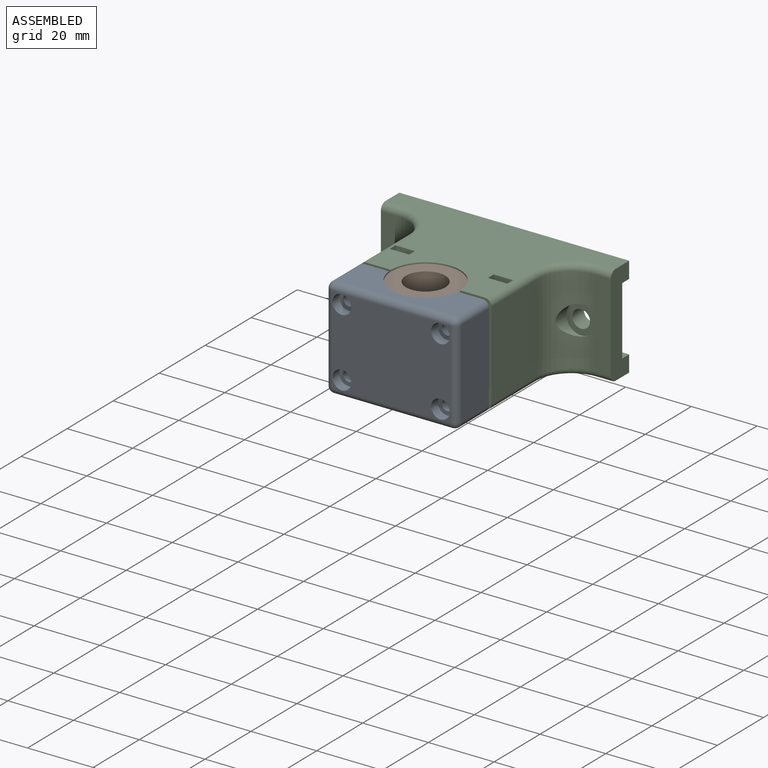
[diagram: assembled view]
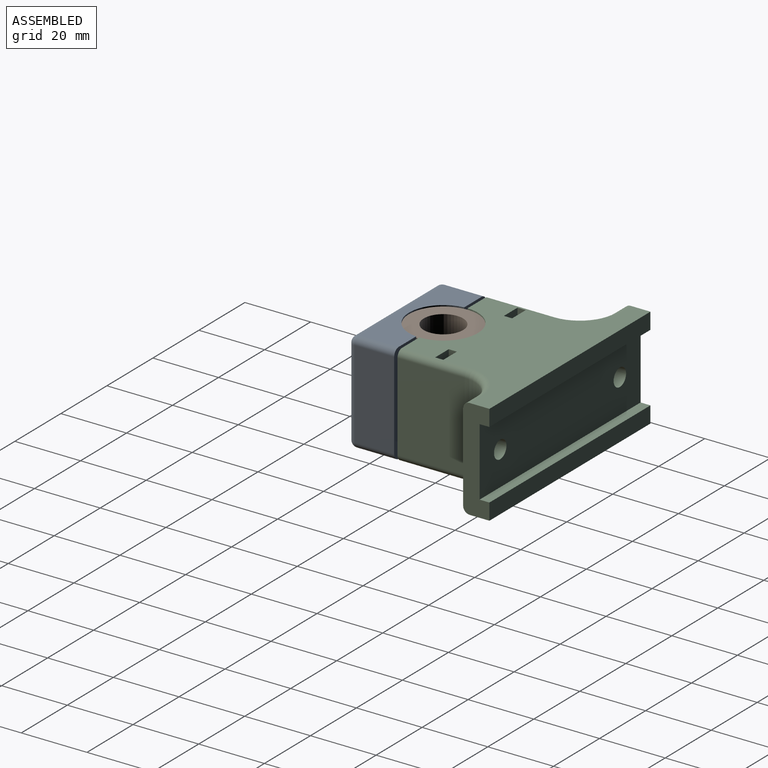
[diagram: assembled view, second angle]
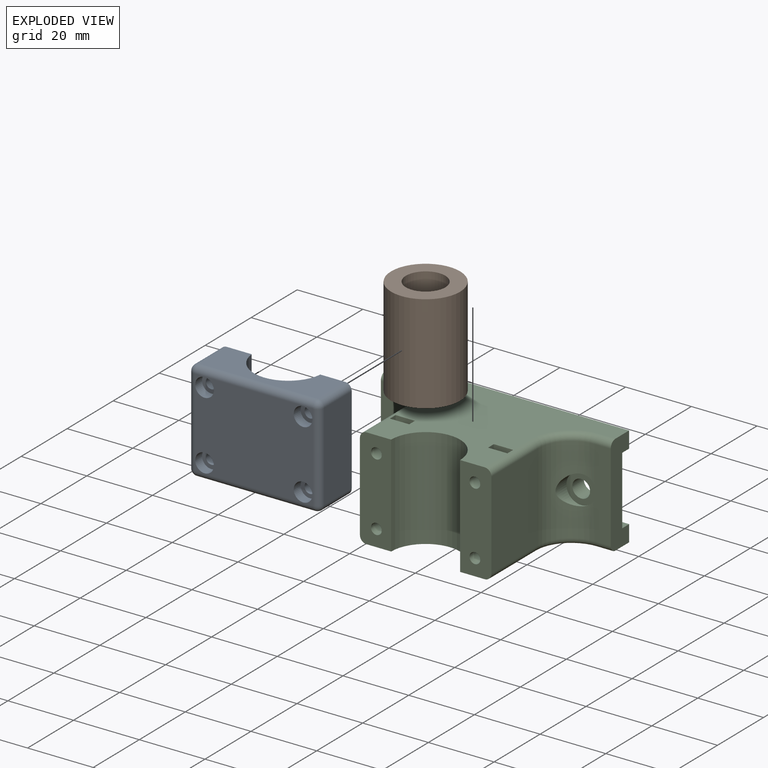
[diagram: exploded view]
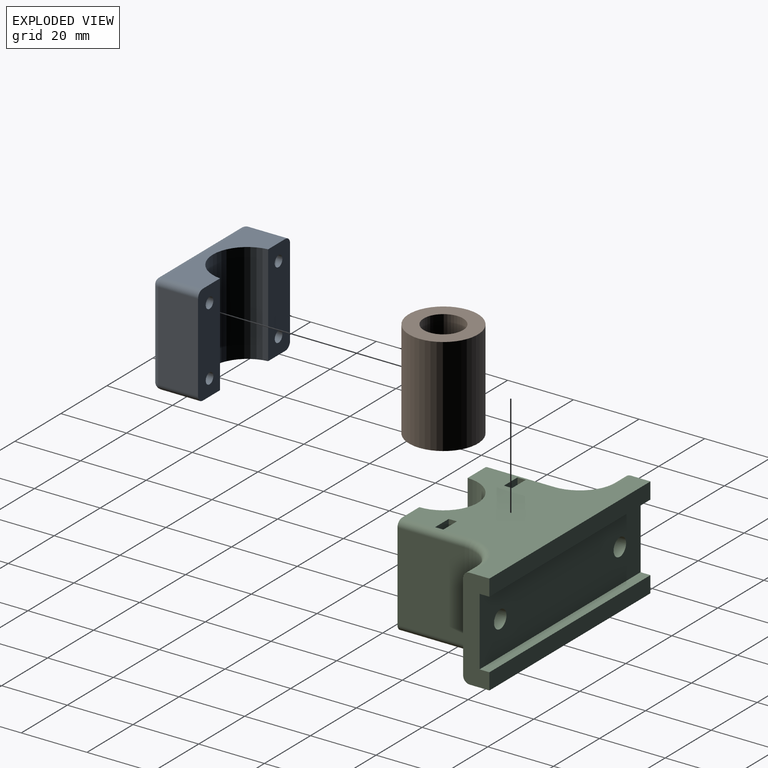
[diagram: exploded view, second angle]
ASSEMBLY  parts=3 mates=2
PART A: 32 faces, bbox 40x14x30.8 mm
  f0: cylinder r=1.65mm len=11mm, axis (0,-1,0), area 114mm2, adj f11,f18
  f1: cylinder r=1.65mm len=11mm, axis (0,-1,0), area 114mm2, adj f11,f16
  f2: cylinder r=1.65mm len=11mm, axis (0,-1,0), area 114mm2, adj f10,f14
  f3: cylinder r=1.65mm len=11mm, axis (0,-1,0), area 114mm2, adj f10,f12
  f4: plane 36x26.78mm, normal (0,-1,0), area 862mm2, adj f13,f15,f17,f19,f22,f25,f28,f31
  f5: plane 26.78x12mm, normal (1,0,0), area 321.4mm2, adj f10,f26,f27,f31
  f6: plane 26.78x12mm, normal (-1,0,0), area 321.4mm2, adj f11,f20,f21,f22
  f7: plane 36x12mm, normal (0,0,1), area 279.8mm2, adj f9,f10,f11,f20,f25,f26
  f8: plane 36x12mm, normal (0,0,-1), area 279.8mm2, adj f9,f10,f11,f21,f27,f28
  f9: cylinder r=10.5mm len=30.78mm, axis (0,0,1), area 953.7mm2, adj f7,f8,f10,f11
  f10: plane 30.78x9.55mm, normal (0,1,0), area 275.1mm2, adj f2,f3,f5,f7,f8,f9,f26,f27
  f11: plane 30.78x9.55mm, normal (0,1,0), area 275.1mm2, adj f0,f1,f6,f7,f8,f9,f20,f21
  f12: plane 5.7x5.7mm, normal (0,-1,0), area 17mm2, adj f3,f13
  f13: cylinder r=2.85mm len=5.7mm, axis (0,-1,0), area 53.7mm2, adj f4,f12
  f14: plane 5.7x5.7mm, normal (0,-1,0), area 17mm2, adj f2,f15
  f15: cylinder r=2.85mm len=5.7mm, axis (0,-1,0), area 53.7mm2, adj f4,f14
  f16: plane 5.7x5.7mm, normal (0,-1,0), area 17mm2, adj f1,f17
  f17: cylinder r=2.85mm len=5.7mm, axis (0,-1,0), area 53.7mm2, adj f4,f16
  f18: plane 5.7x5.7mm, normal (0,-1,0), area 17mm2, adj f0,f19
  f19: cylinder r=2.85mm len=5.7mm, axis (0,-1,0), area 53.7mm2, adj f4,f18
  f20: cylinder r=2mm len=12mm, axis (0,1,0), area 37.7mm2, adj f6,f7,f11,f23
  f21: cylinder r=2mm len=12mm, axis (0,-1,0), area 37.7mm2, adj f6,f8,f11,f24
  f22: cylinder r=2mm len=26.78mm, axis (0,0,-1), area 84.1mm2, adj f4,f6,f23,f24
  f23: sphere r=2mm, area 6.3mm2, adj f20,f22,f25
  f24: sphere r=2mm, area 6.3mm2, adj f21,f22,f28
  f25: cylinder r=2mm len=36mm, axis (-1,0,0), area 113.1mm2, adj f4,f7,f23,f29
  f26: cylinder r=2mm len=12mm, axis (0,-1,0), area 37.7mm2, adj f5,f7,f10,f29
  f27: cylinder r=2mm len=12mm, axis (0,1,0), area 37.7mm2, adj f5,f8,f10,f30
  f28: cylinder r=2mm len=36mm, axis (1,0,0), area 113.1mm2, adj f4,f8,f24,f30
  f29: sphere r=2mm, area 6.3mm2, adj f25,f26,f31
  f30: sphere r=2mm, area 6.3mm2, adj f27,f28,f31
  f31: cylinder r=2mm len=26.78mm, axis (0,0,1), area 84.1mm2, adj f4,f5,f29,f30
PART B: 4 faces, bbox 21x21x30 mm
  f0: cylinder r=6mm len=30mm, axis (0,0,-1), area 1131mm2, adj f2,f3
  f1: cylinder r=10.5mm len=30mm, axis (0,0,-1), area 1979.2mm2, adj f2,f3
  f2: plane 21x21mm, normal (0,0,1), area 233.3mm2, adj f0,f1
  f3: plane 21x21mm, normal (0,0,-1), area 233.3mm2, adj f0,f1
PART C: 54 faces, bbox 70x38.5x30.8 mm
  f0: plane 70x38.5mm, normal (0,0,1), area 1449.1mm2, adj f6,f8,f9,f13,f16,f19,f26,f27
  f1: plane 70x38.5mm, normal (0,0,-1), area 1449.1mm2, adj f6,f8,f9,f14,f16,f19,f26,f27
  f2: cylinder r=2.7mm len=5.4mm, axis (0,-1,0), area 84.8mm2, adj f7,f11
  f3: cylinder r=2.7mm len=5.4mm, axis (0,-1,0), area 84.8mm2, adj f10,f11
  f4: cylinder r=10mm len=26.78mm, axis (0,0,-1), area 348.5mm2, adj f7,f17,f21,f43,f49
  f5: cylinder r=10mm len=26.78mm, axis (0,0,1), area 348.5mm2, adj f10,f18,f20,f46,f52
  f6: plane 30.78x9.5mm, normal (0,-1,0), area 273.6mm2, adj f0,f1,f17,f19,f24,f25,f42,f48
  f7: plane 26.78x13.5mm, normal (0,-1,0), area 173.2mm2, adj f2,f4,f8,f21,f44,f50
  f8: plane 30.78x8mm, normal (1,0,0), area 182.2mm2, adj f0,f1,f7,f11,f12,f13,f14,f15
  f9: plane 30.78x8mm, normal (-1,0,0), area 182.2mm2, adj f0,f1,f10,f11,f12,f13,f14,f15
  f10: plane 26.78x13.5mm, normal (0,-1,0), area 173.2mm2, adj f3,f5,f9,f20,f47,f53
  f11: plane 70x20.78mm, normal (0,1,0), area 1408.8mm2, adj f2,f3,f8,f9,f12,f15
  f12: plane 70x3mm, normal (0,0,-1), area 210mm2, adj f8,f9,f11,f13
  f13: plane 70x5mm, normal (0,1,0), area 350mm2, adj f0,f8,f9,f12
  f14: plane 70x5mm, normal (0,1,0), area 350mm2, adj f1,f8,f9,f15
  f15: plane 70x3mm, normal (0,0,1), area 210mm2, adj f8,f9,f11,f14
  f16: plane 30.78x9.5mm, normal (0,-1,0), area 273.6mm2, adj f0,f1,f18,f19,f22,f23,f45,f51
  f17: plane 26.78x20.5mm, normal (1,0,0), area 549mm2, adj f4,f6,f42,f48
  f18: plane 26.78x20.5mm, normal (-1,0,0), area 549mm2, adj f5,f16,f45,f51
  f19: cylinder r=10.5mm len=30.78mm, axis (0,0,1), area 1015.3mm2, adj f0,f1,f6,f16
  f20: cylinder r=4.5mm len=9mm, axis (0,1,0), area 44.4mm2, adj f5,f10
  f21: cylinder r=4.5mm len=9mm, axis (0,1,0), area 44.4mm2, adj f4,f7
  f22: cylinder r=1.65mm len=10mm, axis (0,-1,0), area 103.7mm2, adj f16,f35
  f23: cylinder r=1.65mm len=10mm, axis (0,-1,0), area 103.7mm2, adj f16,f35
  f24: cylinder r=1.65mm len=10mm, axis (0,-1,0), area 103.7mm2, adj f6,f27
  f25: cylinder r=1.65mm len=10mm, axis (0,-1,0), area 103.7mm2, adj f6,f27
  f26: plane 30.78x5.9mm, normal (0,-1,0), area 164.5mm2, adj f0,f1,f28,f29,f31,f33
  f27: plane 30.78x5.9mm, normal (0,1,0), area 164.5mm2, adj f0,f1,f24,f25,f28,f29
  f28: plane 30.78x2.5mm, normal (1,0,0), area 76.9mm2, adj f0,f1,f26,f27
  f29: plane 30.78x2.5mm, normal (-1,0,0), area 76.9mm2, adj f0,f1,f26,f27
  f30: plane 3.3x3.3mm, normal (0,-1,0), area 8.6mm2, adj f31
  f31: cylinder r=1.65mm len=17.5mm, axis (0,-1,0), area 181.4mm2, adj f26,f30
  f32: plane 3.3x3.3mm, normal (0,-1,0), area 8.6mm2, adj f33
  f33: cylinder r=1.65mm len=17.5mm, axis (0,-1,0), area 181.4mm2, adj f26,f32
  f34: plane 30.78x5.9mm, normal (0,-1,0), area 164.5mm2, adj f0,f1,f36,f37,f39,f41
  f35: plane 30.78x5.9mm, normal (0,1,0), area 164.5mm2, adj f0,f1,f22,f23,f36,f37
  f36: plane 30.78x2.5mm, normal (1,0,0), area 76.9mm2, adj f0,f1,f34,f35
  f37: plane 30.78x2.5mm, normal (-1,0,0), area 76.9mm2, adj f0,f1,f34,f35
  f38: plane 3.3x3.3mm, normal (0,-1,0), area 8.6mm2, adj f39
  f39: cylinder r=1.65mm len=17.5mm, axis (0,-1,0), area 181.4mm2, adj f34,f38
  f40: plane 3.3x3.3mm, normal (0,-1,0), area 8.6mm2, adj f41
  f41: cylinder r=1.65mm len=17.5mm, axis (0,-1,0), area 181.4mm2, adj f34,f40
  f42: cylinder r=2mm len=20.5mm, axis (0,-1,0), area 64.4mm2, adj f1,f6,f17,f43
  f43: torus R=12mm, axis (0,0,-1), area 52.9mm2, adj f1,f4,f42,f44
  f44: cylinder r=2mm len=5mm, axis (-1,0,0), area 15.7mm2, adj f1,f7,f8,f43
  f45: cylinder r=2mm len=20.5mm, axis (0,1,0), area 64.4mm2, adj f1,f16,f18,f46
  f46: torus R=12mm, axis (0,0,-1), area 52.9mm2, adj f1,f5,f45,f47
  f47: cylinder r=2mm len=5mm, axis (-1,0,0), area 15.7mm2, adj f1,f9,f10,f46
  f48: cylinder r=2mm len=20.5mm, axis (0,-1,0), area 64.4mm2, adj f0,f6,f17,f49
  f49: torus R=12mm, axis (0,0,1), area 52.9mm2, adj f0,f4,f48,f50
  f50: cylinder r=2mm len=5mm, axis (-1,0,0), area 15.7mm2, adj f0,f7,f8,f49
  f51: cylinder r=2mm len=20.5mm, axis (0,1,0), area 64.4mm2, adj f0,f16,f18,f52
  f52: torus R=12mm, axis (0,0,1), area 52.9mm2, adj f0,f5,f51,f53
  f53: cylinder r=2mm len=5mm, axis (-1,0,0), area 15.7mm2, adj f0,f9,f10,f52
PLACE A t=(0,2.73,0)mm
PLACE B t=(59.71,17.09,-15)mm
PLACE C at identity
MATE fastened A.f2 <-> C.f24  axis (0,1,0) through (15,-35.5,10.39)mm
MATE fastened B.f0 <-> C.f19  axis (0,0,-1) through (0,-35.5,0)mm
